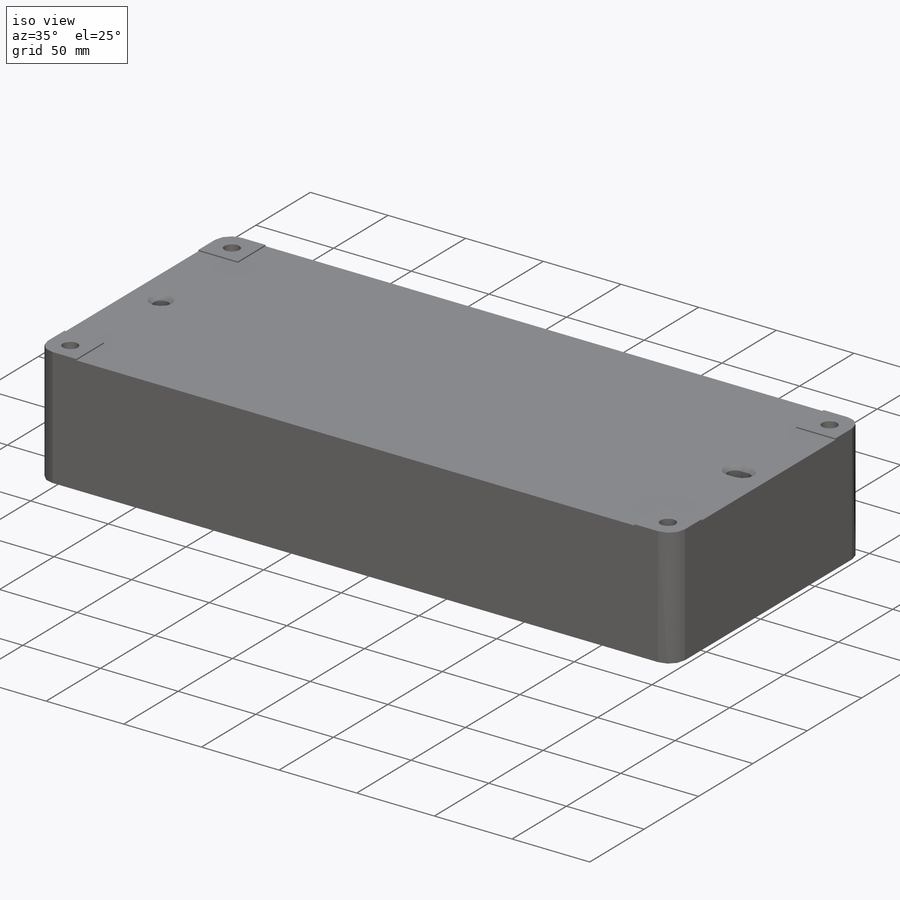
[diagram: iso view]
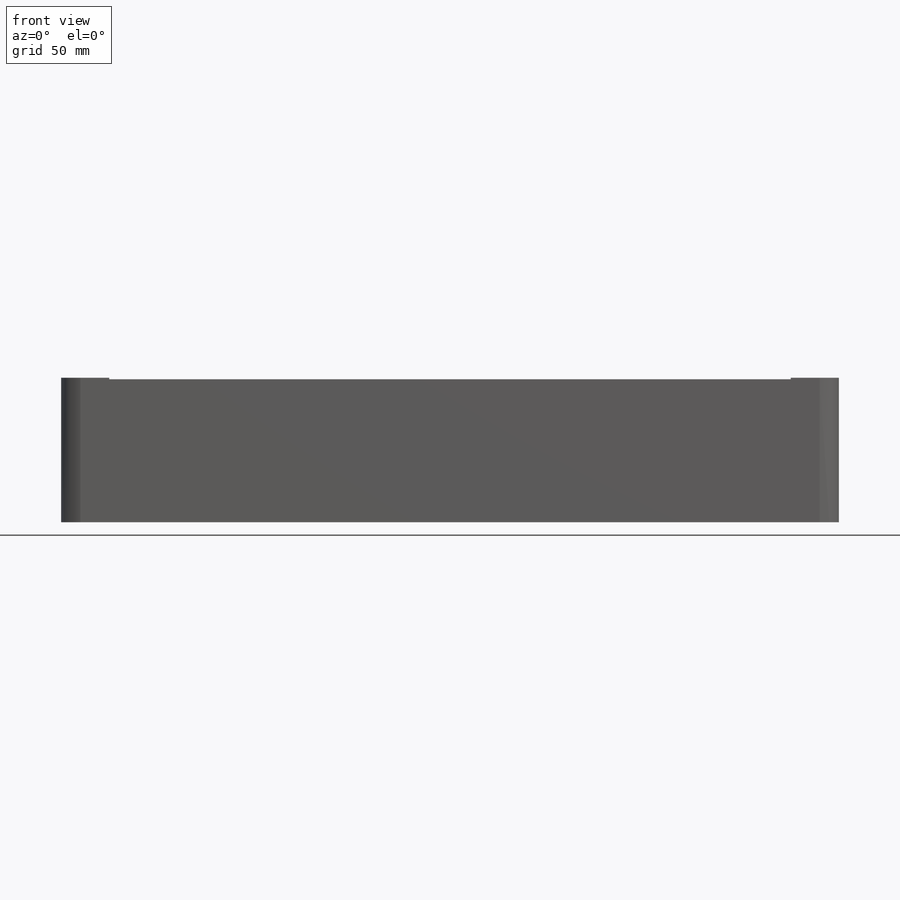
[diagram: front view]
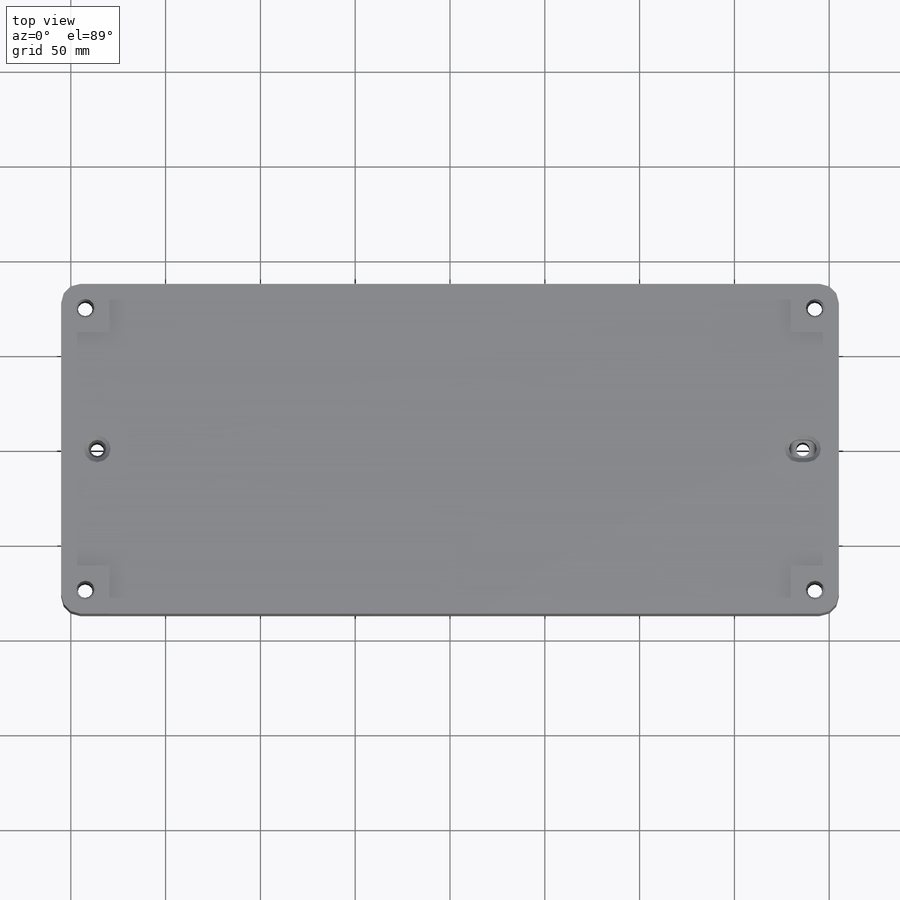
[diagram: top view]
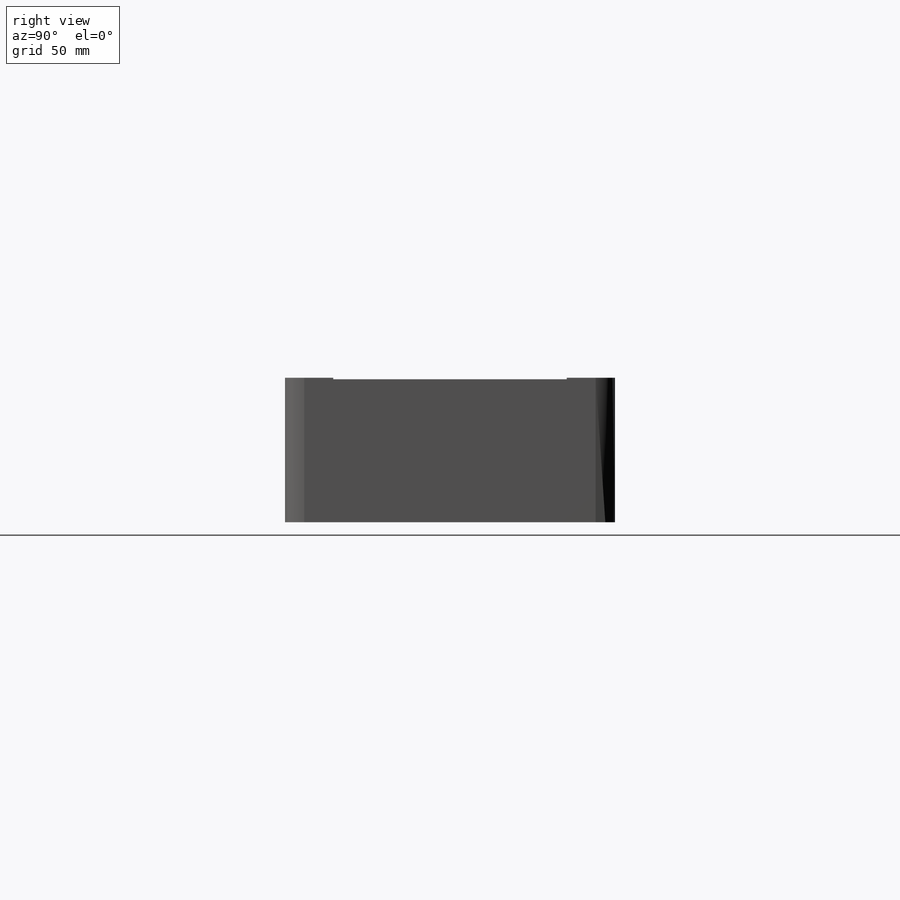
[diagram: right view]
SOLIDWORKS PART (.sldprt)
format: sldprt  version: not decoded by parser v0  size: 357,376 bytes
history: native  units: mm
features: sketch x9, hole x3, cut_extrude x2, material x1, extrude x1, fillet x1, chamfer x1 + 1 further entry (+13 scaffold rows collapsed)
feature tree (32):
  scaffold x13  (default folders/planes/origin — collapsed)
  material  "6061-T6 Al"
  "Origin"  ID=-1
  sketch  "Sketch1"  dims[D1=410.21mm D2=173.99mm]
  extrude  "Extrude1"  Depth=76.2mm
  sketch  "Sketch2"  dims[D1=25.4mm D2=25.4mm D3=25.4mm D4=25.4mm D5=25.4mm D6=25.4mm D7=25.4mm D8=25.4mm]
  cut_extrude  "Extrude2"  Depth=0.762mm
  hole  "3/8-16 Tapped Hole2"  Diameter=7.9375mm Depth=76.2mm
  sketch  "Sketch4"  dims[D1=12.7mm D2=12.7mm D3=12.7mm D4=12.7mm D5=12.7mm D6=12.7mm D7=12.7mm D8=12.7mm]
  sketch  "Sketch3"  dims[hole-wizard template sketch: 41 standard entries collapsed; hole parameters kept: c12.Thru Tap Drill Dia.=7.9375mm c12.Thru Tap Drill Depth=76.2mm c12.Thread Major Dia.=9.525mm c12.Thread Depth=25.4mm c12.Near C'Sink Dia.=10.795mm c12.D6=~4.399409mm c12.Near C'Sink Angle=120.0deg]
  fillet  "Fillet1"  Radius=10.16mm
  hole  "3/8 dowel pin hole"  Diameter=9.54278mm Depth=19.05mm
  sketch  "Sketch6"  dims[D1=19.05mm]
  sketch  "Sketch5"  dims[hole-wizard template sketch: 45 standard entries collapsed; hole parameters kept: c14.Drill Angle=90.0deg]
  sketch  "Sketch7"  dims[c1.D3=~4.77139mm c1.D1=63.5mm c1.D2=5.08mm c1.D4=283.21mm c2.D1=19.05mm]
  cut_extrude  "Extrude3"  Depth=19.05mm
  chamfer  "Chamfer1"  Distance=2.286mm Angle=45deg
  hole  "7/32 (0.21875) Diameter Hole Vented Holes"  Diameter=7.14375mm Depth=75.438mm
  sketch  "Sketch16"  dims[D1=~70.089188mm]
  sketch  "Sketch15"  dims[hole-wizard template sketch: 60 standard entries collapsed; hole parameters kept: c18.Thru Hole Depth=75.438mm]
decode coverage: 17 of 17 modeling features carry decoded parameters; 1 rows unclassified (native names shown)
note: ~ marks probable driven/reference dimensions
note: suppression state not decoded; provenance and decode notes live in map.json
